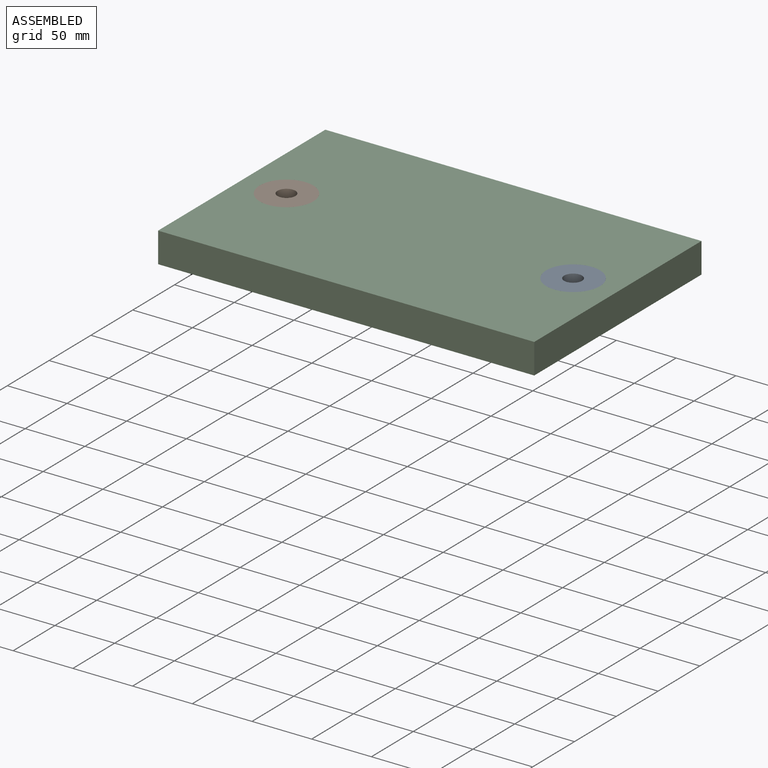
[diagram: assembled view]
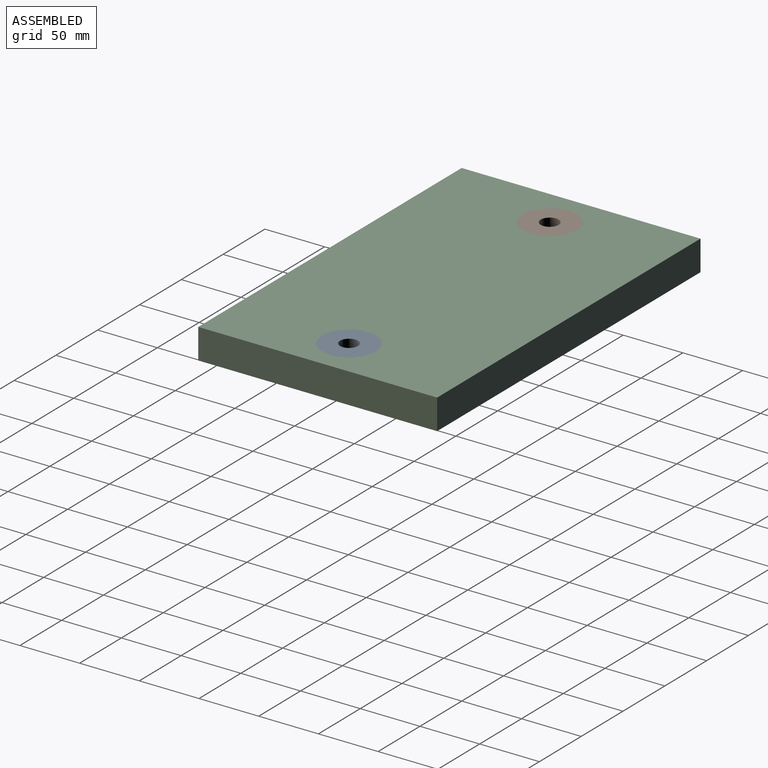
[diagram: assembled view, second angle]
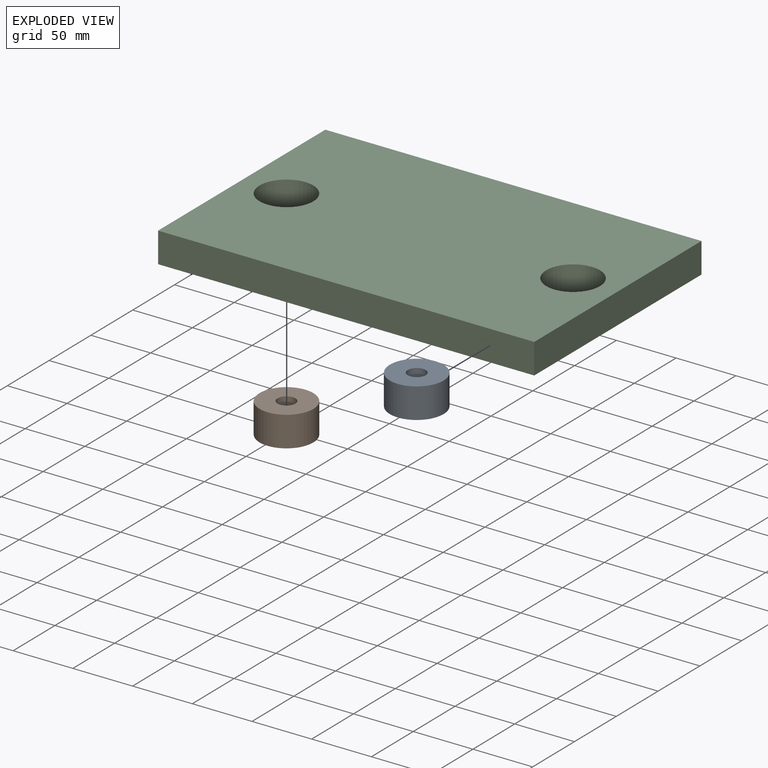
[diagram: exploded view]
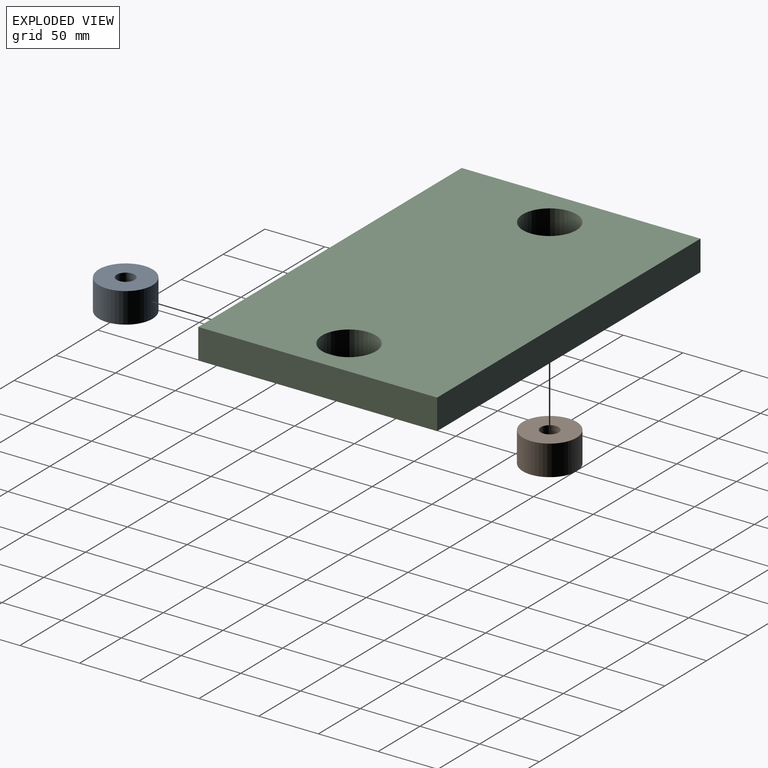
[diagram: exploded view, second angle]
ASSEMBLY  parts=3 mates=2
PART A: 4 faces, bbox 45x45x25.4 mm
  f0: cylinder r=7.5mm len=25.4mm, axis (0,0,-1), area 1196.9mm2, adj f2,f3
  f1: cylinder r=22.5mm len=45mm, axis (0,0,-1), area 3590.8mm2, adj f2,f3
  f2: plane 45x45mm, normal (0,0,1), area 1413.7mm2, adj f0,f1
  f3: plane 45x45mm, normal (0,0,-1), area 1413.7mm2, adj f0,f1
PART B: same geometry as A
PART C: 8 faces, bbox 315x200x25.4 mm
  f0: plane 315x25.4mm, normal (0,1,0), area 8001mm2, adj f1,f3,f6,f7
  f1: plane 200x25.4mm, normal (-1,0,0), area 5080mm2, adj f0,f2,f6,f7
  f2: plane 315x25.4mm, normal (0,-1,0), area 8001mm2, adj f1,f3,f6,f7
  f3: plane 200x25.4mm, normal (1,0,0), area 5080mm2, adj f0,f2,f6,f7
  f4: cylinder r=22.5mm len=45mm, axis (0,0,-1), area 3590.8mm2, adj f6,f7
  f5: cylinder r=22.5mm len=45mm, axis (0,0,-1), area 3590.8mm2, adj f6,f7
  f6: plane 315x200mm, normal (0,0,1), area 59819.1mm2, adj f0,f1,f2,f3,f4,f5
  f7: plane 315x200mm, normal (0,0,-1), area 59819.1mm2, adj f0,f1,f2,f3,f4,f5
PLACE A t=(-0.75,-14.92,69.5)mm
PLACE B t=(-240.75,-14.92,69.5)mm
PLACE C t=(36.75,-114.92,69.5)mm
MATE fastened A.f1 <-> C.f4  axis (0,0,-1) through (-0.75,-14.92,82.2)mm
MATE fastened B.f1 <-> C.f5  axis (0,0,-1) through (-240.75,-14.92,82.2)mm
